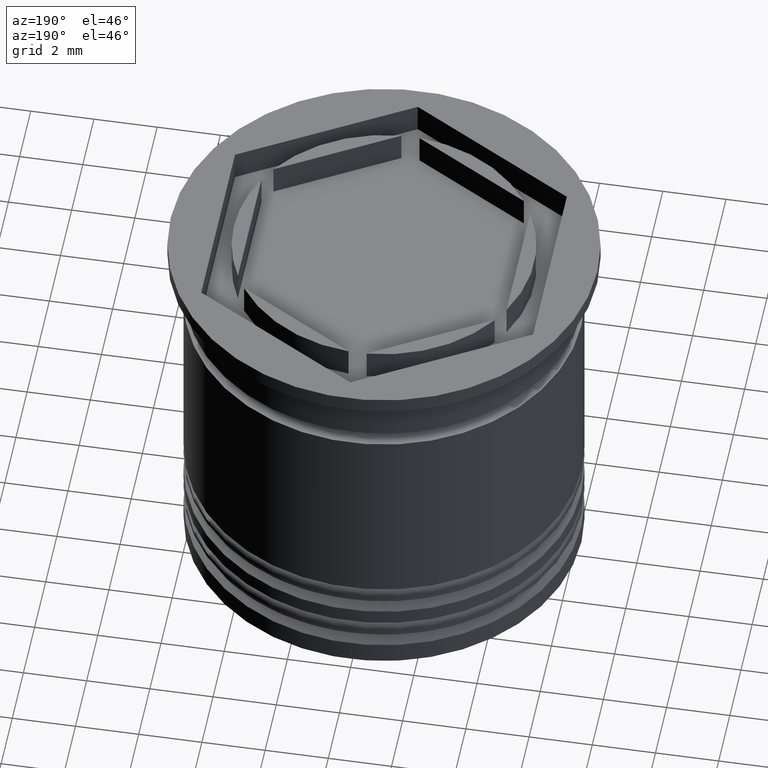
[diagram: clean part render]
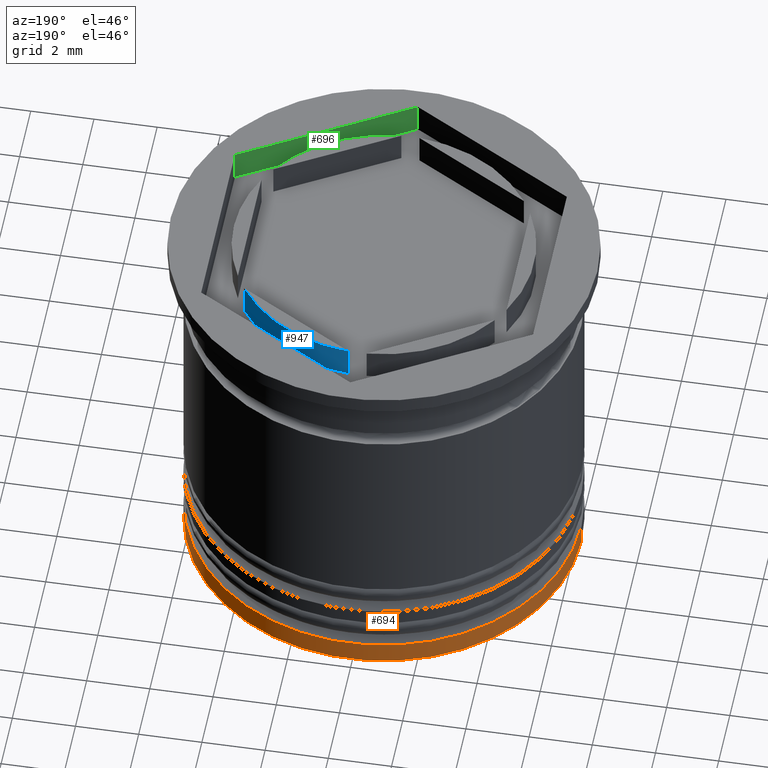
[diagram: same view with three faces highlighted in distinct colors, each labeled with its STEP entity id]
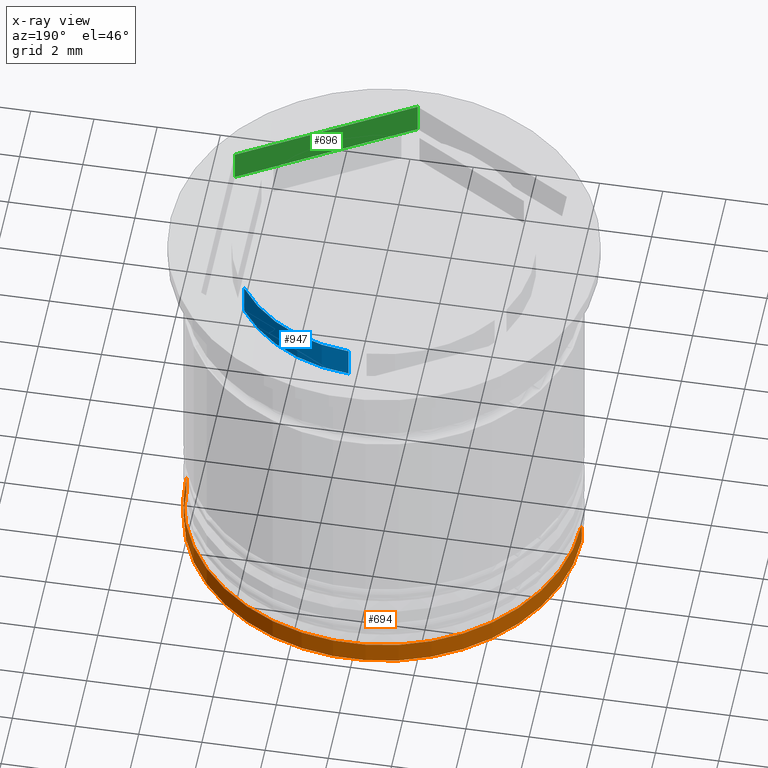
[diagram: x-ray of the same camera — body ghosted, the three highlighted faces saturated]
A machine part, auxiliary view with three faces highlighted in distinct colors.
The next image is the same camera in x-ray (body ghosted, the three faces saturated) — at least one of them is partly hidden behind the body in this view.
Their STEP definitions:

[orange] entity #694 — the highlighted cylindrical surface (partial cylindrical patch) has radius 6.25 mm, axis along (-0, -0, 1).
#70 = DIRECTION ( 'NONE',  ( -0.000000000000000000, -0.000000000000000000, 1.000000000000000000 ) ) ;
#107 = CARTESIAN_POINT ( 'NONE',  ( 0.000000000000000000, 0.000000000000000000, -12.20000000000000284 ) ) ;
#145 = CYLINDRICAL_SURFACE ( 'NONE', #740, 6.250000000000000000 ) ;
#201 = ORIENTED_EDGE ( 'NONE', *, *, #1036, .T. ) ;
#247 = DIRECTION ( 'NONE',  ( -1.000000000000000000, 0.000000000000000000, 0.000000000000000000 ) ) ;
#259 = CARTESIAN_POINT ( 'NONE',  ( -6.250000000000000000, 7.654042494670957606E-16, -11.50000000000000711 ) ) ;
#287 = EDGE_CURVE ( 'NONE', #1727, #1754, #920, .T. ) ;
#348 = DIRECTION ( 'NONE',  ( -1.000000000000000000, 0.000000000000000000, 0.000000000000000000 ) ) ;
#365 = EDGE_LOOP ( 'NONE', ( #786, #201, #386, #1884 ) ) ;
#386 = ORIENTED_EDGE ( 'NONE', *, *, #509, .T. ) ;
#450 = AXIS2_PLACEMENT_3D ( 'NONE', #107, #70, #247 ) ;
#509 = EDGE_CURVE ( 'NONE', #1786, #1955, #1336, .T. ) ;
#571 = DIRECTION ( 'NONE',  ( -0.000000000000000000, -0.000000000000000000, 1.000000000000000000 ) ) ;
#625 = LINE ( 'NONE', #1335, #1772 ) ;
#694 = ADVANCED_FACE ( 'NONE', ( #1672 ), #145, .T. ) ;
#740 = AXIS2_PLACEMENT_3D ( 'NONE', #1067, #1845, #762 ) ;
#762 = DIRECTION ( 'NONE',  ( 1.000000000000000000, 0.000000000000000000, 0.000000000000000000 ) ) ;
#786 = ORIENTED_EDGE ( 'NONE', *, *, #287, .T. ) ;
#802 = AXIS2_PLACEMENT_3D ( 'NONE', #1722, #1711, #348 ) ;
#882 = CARTESIAN_POINT ( 'NONE',  ( 6.250000000000000000, 0.000000000000000000, -12.20000000000000284 ) ) ;
#920 = CIRCLE ( 'NONE', #450, 6.250000000000000000 ) ;
#1036 = EDGE_CURVE ( 'NONE', #1754, #1786, #625, .T. ) ;
#1067 = CARTESIAN_POINT ( 'NONE',  ( 0.000000000000000000, 0.000000000000000000, 0.000000000000000000 ) ) ;
#1335 = CARTESIAN_POINT ( 'NONE',  ( -6.250000000000000000, 7.654042494670957606E-16, 0.000000000000000000 ) ) ;
#1336 = CIRCLE ( 'NONE', #802, 6.250000000000000000 ) ;
#1353 = LINE ( 'NONE', #1985, #1542 ) ;
#1542 = VECTOR ( 'NONE', #571, 1000.000000000000000 ) ;
#1556 = EDGE_CURVE ( 'NONE', #1727, #1955, #1353, .T. ) ;
#1647 = CARTESIAN_POINT ( 'NONE',  ( -6.250000000000000000, 7.654042494670957606E-16, -12.20000000000000284 ) ) ;
#1672 = FACE_OUTER_BOUND ( 'NONE', #365, .T. ) ;
#1691 = CARTESIAN_POINT ( 'NONE',  ( 6.250000000000000000, 0.000000000000000000, -11.50000000000000711 ) ) ;
#1711 = DIRECTION ( 'NONE',  ( 0.000000000000000000, 0.000000000000000000, -1.000000000000000000 ) ) ;
#1722 = CARTESIAN_POINT ( 'NONE',  ( 0.000000000000000000, 0.000000000000000000, -11.50000000000000711 ) ) ;
#1727 = VERTEX_POINT ( 'NONE', #882 ) ;
#1754 = VERTEX_POINT ( 'NONE', #1647 ) ;
#1772 = VECTOR ( 'NONE', #1973, 1000.000000000000000 ) ;
#1786 = VERTEX_POINT ( 'NONE', #259 ) ;
#1845 = DIRECTION ( 'NONE',  ( -0.000000000000000000, -0.000000000000000000, 1.000000000000000000 ) ) ;
#1884 = ORIENTED_EDGE ( 'NONE', *, *, #1556, .F. ) ;
#1955 = VERTEX_POINT ( 'NONE', #1691 ) ;
#1973 = DIRECTION ( 'NONE',  ( -0.000000000000000000, -0.000000000000000000, 1.000000000000000000 ) ) ;
#1985 = CARTESIAN_POINT ( 'NONE',  ( 6.250000000000000000, 0.000000000000000000, 0.000000000000000000 ) ) ;

[blue] entity #947 — the highlighted cylindrical surface (partial cylindrical patch) has radius 4.75 mm, axis along (-0, -0, 1).
#51 = VERTEX_POINT ( 'NONE', #1821 ) ;
#66 = VERTEX_POINT ( 'NONE', #1667 ) ;
#84 = AXIS2_PLACEMENT_3D ( 'NONE', #726, #1328, #1497 ) ;
#142 = AXIS2_PLACEMENT_3D ( 'NONE', #1813, #1820, #1655 ) ;
#312 = VERTEX_POINT ( 'NONE', #1301 ) ;
#415 = VERTEX_POINT ( 'NONE', #502 ) ;
#489 = DIRECTION ( 'NONE',  ( 1.000000000000000000, 0.000000000000000000, 0.000000000000000000 ) ) ;
#502 = CARTESIAN_POINT ( 'NONE',  ( 3.962117307087382745, 2.619947794304043232, 0.000000000000000000 ) ) ;
#635 = ORIENTED_EDGE ( 'NONE', *, *, #1914, .F. ) ;
#664 = ORIENTED_EDGE ( 'NONE', *, *, #1116, .F. ) ;
#726 = CARTESIAN_POINT ( 'NONE',  ( 0.000000000000000000, 0.000000000000000000, -1.000000000000000000 ) ) ;
#898 = CIRCLE ( 'NONE', #84, 4.749999999999999112 ) ;
#910 = ORIENTED_EDGE ( 'NONE', *, *, #1857, .T. ) ;
#947 = ADVANCED_FACE ( 'NONE', ( #1851 ), #1988, .T. ) ;
#1074 = DIRECTION ( 'NONE',  ( -0.000000000000000000, -0.000000000000000000, 1.000000000000000000 ) ) ;
#1116 = EDGE_CURVE ( 'NONE', #66, #312, #1959, .T. ) ;
#1163 = EDGE_LOOP ( 'NONE', ( #664, #1626, #635, #910 ) ) ;
#1250 = AXIS2_PLACEMENT_3D ( 'NONE', #1846, #1559, #489 ) ;
#1301 = CARTESIAN_POINT ( 'NONE',  ( 0.2878826929126141465, 4.741268137863683840, -1.000000000000000888 ) ) ;
#1328 = DIRECTION ( 'NONE',  ( -0.000000000000000000, 0.000000000000000000, 1.000000000000000000 ) ) ;
#1340 = VECTOR ( 'NONE', #1651, 1000.000000000000000 ) ;
#1497 = DIRECTION ( 'NONE',  ( 1.000000000000000000, 0.000000000000000000, 0.000000000000000000 ) ) ;
#1559 = DIRECTION ( 'NONE',  ( -0.000000000000000000, 0.000000000000000000, 1.000000000000000000 ) ) ;
#1602 = EDGE_CURVE ( 'NONE', #415, #66, #1640, .T. ) ;
#1626 = ORIENTED_EDGE ( 'NONE', *, *, #1602, .F. ) ;
#1640 = CIRCLE ( 'NONE', #1250, 4.749999999999999112 ) ;
#1651 = DIRECTION ( 'NONE',  ( 0.000000000000000000, 0.000000000000000000, -1.000000000000000000 ) ) ;
#1655 = DIRECTION ( 'NONE',  ( 1.000000000000000000, 0.000000000000000000, 0.000000000000000000 ) ) ;
#1662 = CARTESIAN_POINT ( 'NONE',  ( 0.2878826929126137024, 4.741268137863684728, -1.000000000000000000 ) ) ;
#1667 = CARTESIAN_POINT ( 'NONE',  ( 0.2878826929126133138, 4.741268137863685617, 0.000000000000000000 ) ) ;
#1668 = LINE ( 'NONE', #1700, #1979 ) ;
#1700 = CARTESIAN_POINT ( 'NONE',  ( 3.962117307087382745, 2.619947794304042787, -1.000000000000000000 ) ) ;
#1813 = CARTESIAN_POINT ( 'NONE',  ( 0.000000000000000000, 0.000000000000000000, -1.000000000000000000 ) ) ;
#1820 = DIRECTION ( 'NONE',  ( -0.000000000000000000, -0.000000000000000000, 1.000000000000000000 ) ) ;
#1821 = CARTESIAN_POINT ( 'NONE',  ( 3.962117307087382745, 2.619947794304043232, -1.000000000000000888 ) ) ;
#1846 = CARTESIAN_POINT ( 'NONE',  ( 0.000000000000000000, 0.000000000000000000, 0.000000000000000000 ) ) ;
#1851 = FACE_OUTER_BOUND ( 'NONE', #1163, .T. ) ;
#1857 = EDGE_CURVE ( 'NONE', #51, #312, #898, .T. ) ;
#1914 = EDGE_CURVE ( 'NONE', #51, #415, #1668, .T. ) ;
#1959 = LINE ( 'NONE', #1662, #1340 ) ;
#1979 = VECTOR ( 'NONE', #1074, 1000.000000000000000 ) ;
#1988 = CYLINDRICAL_SURFACE ( 'NONE', #142, 4.749999999999999112 ) ;

[green] entity #696 — the highlighted planar face has unit normal (0.5, -0.866, 0).
#68 = DIRECTION ( 'NONE',  ( -0.000000000000000000, -0.000000000000000000, 1.000000000000000000 ) ) ;
#81 = DIRECTION ( 'NONE',  ( 0.8660254037844385966, 0.5000000000000001110, 0.000000000000000000 ) ) ;
#153 = PLANE ( 'NONE',  #1746 ) ;
#180 = LINE ( 'NONE', #1233, #1021 ) ;
#240 = LINE ( 'NONE', #850, #767 ) ;
#256 = EDGE_CURVE ( 'NONE', #1899, #944, #240, .T. ) ;
#294 = CARTESIAN_POINT ( 'NONE',  ( 5.249999999999997335, -3.031088913245533423, -1.000000000000000000 ) ) ;
#440 = FACE_OUTER_BOUND ( 'NONE', #755, .T. ) ;
#447 = CARTESIAN_POINT ( 'NONE',  ( 5.249999999999997335, -3.031088913245533423, -1.000000000000000000 ) ) ;
#457 = CARTESIAN_POINT ( 'NONE',  ( 2.624999999999999112, -4.546633369868300356, -1.000000000000000000 ) ) ;
#476 = DIRECTION ( 'NONE',  ( -0.000000000000000000, -0.000000000000000000, 1.000000000000000000 ) ) ;
#601 = CARTESIAN_POINT ( 'NONE',  ( 5.249999999999997335, -3.031088913245533423, 0.000000000000000000 ) ) ;
#650 = ORIENTED_EDGE ( 'NONE', *, *, #1271, .F. ) ;
#678 = ORIENTED_EDGE ( 'NONE', *, *, #1309, .T. ) ;
#696 = ADVANCED_FACE ( 'NONE', ( #440 ), #153, .F. ) ;
#755 = EDGE_LOOP ( 'NONE', ( #1254, #1648, #650, #678 ) ) ;
#767 = VECTOR ( 'NONE', #81, 1000.000000000000000 ) ;
#775 = EDGE_CURVE ( 'NONE', #1120, #944, #1198, .T. ) ;
#850 = CARTESIAN_POINT ( 'NONE',  ( 2.624999999999999112, -4.546633369868300356, 0.000000000000000000 ) ) ;
#944 = VERTEX_POINT ( 'NONE', #601 ) ;
#989 = VECTOR ( 'NONE', #476, 1000.000000000000000 ) ;
#1021 = VECTOR ( 'NONE', #1539, 1000.000000000000000 ) ;
#1035 = CARTESIAN_POINT ( 'NONE',  ( -4.336808689942017736E-16, -6.062177826491070398, 0.000000000000000000 ) ) ;
#1065 = VERTEX_POINT ( 'NONE', #1552 ) ;
#1120 = VERTEX_POINT ( 'NONE', #294 ) ;
#1189 = DIRECTION ( 'NONE',  ( 0.8660254037844385966, 0.5000000000000001110, 0.000000000000000000 ) ) ;
#1198 = LINE ( 'NONE', #447, #989 ) ;
#1233 = CARTESIAN_POINT ( 'NONE',  ( 2.624999999999999112, -4.546633369868300356, -1.000000000000000000 ) ) ;
#1254 = ORIENTED_EDGE ( 'NONE', *, *, #256, .T. ) ;
#1271 = EDGE_CURVE ( 'NONE', #1065, #1120, #180, .T. ) ;
#1309 = EDGE_CURVE ( 'NONE', #1065, #1899, #1599, .T. ) ;
#1360 = DIRECTION ( 'NONE',  ( 0.5000000000000001110, -0.8660254037844385966, 0.000000000000000000 ) ) ;
#1539 = DIRECTION ( 'NONE',  ( 0.8660254037844385966, 0.5000000000000001110, 0.000000000000000000 ) ) ;
#1552 = CARTESIAN_POINT ( 'NONE',  ( -4.336808689942017736E-16, -6.062177826491070398, -1.000000000000000000 ) ) ;
#1599 = LINE ( 'NONE', #1611, #1637 ) ;
#1611 = CARTESIAN_POINT ( 'NONE',  ( -4.336808689942017736E-16, -6.062177826491070398, -1.000000000000000000 ) ) ;
#1637 = VECTOR ( 'NONE', #68, 1000.000000000000000 ) ;
#1648 = ORIENTED_EDGE ( 'NONE', *, *, #775, .F. ) ;
#1746 = AXIS2_PLACEMENT_3D ( 'NONE', #457, #1360, #1189 ) ;
#1899 = VERTEX_POINT ( 'NONE', #1035 ) ;